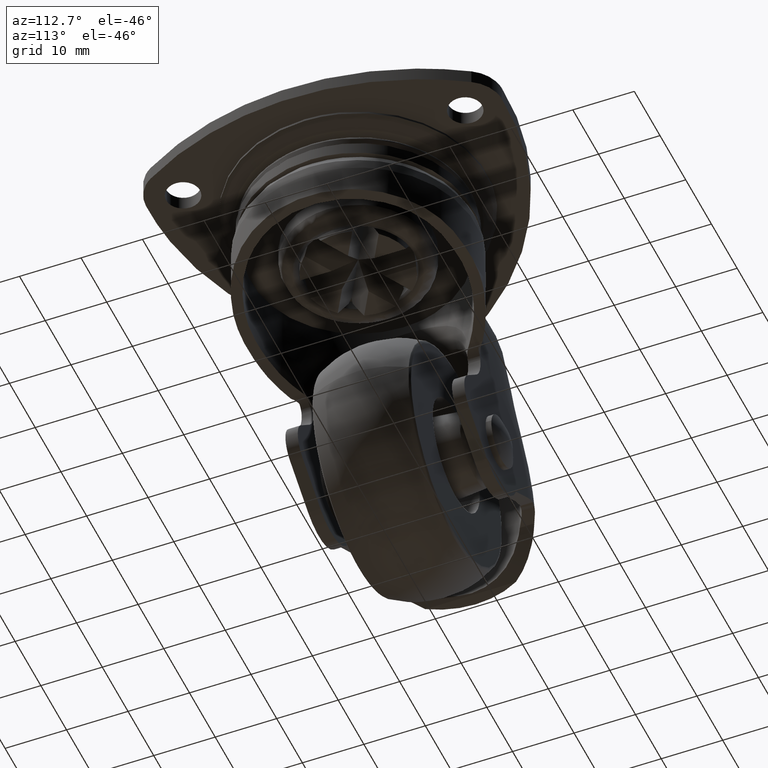
[diagram: clean part render]
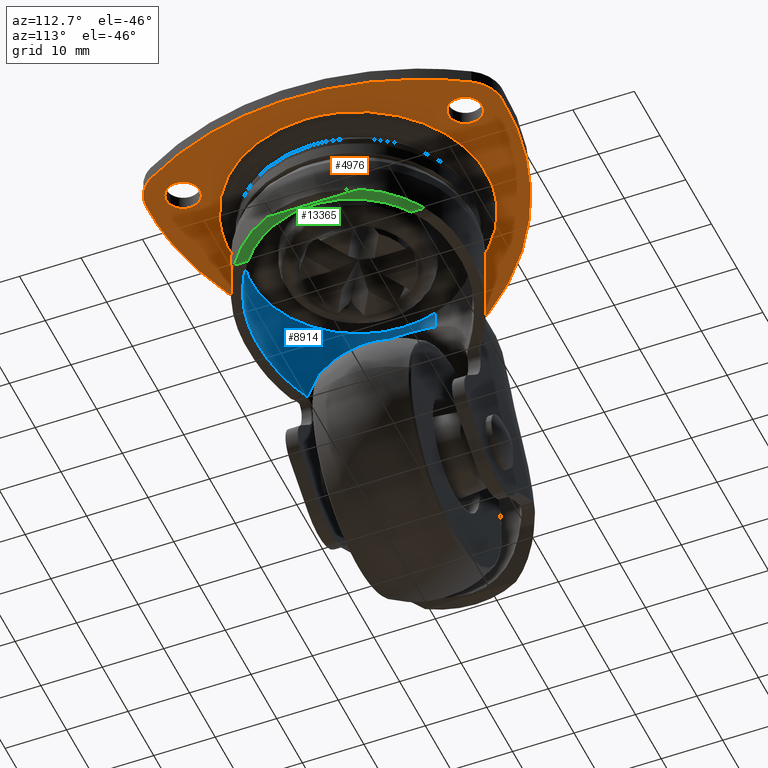
[diagram: same view with three faces highlighted in distinct colors, each labeled with its STEP entity id]
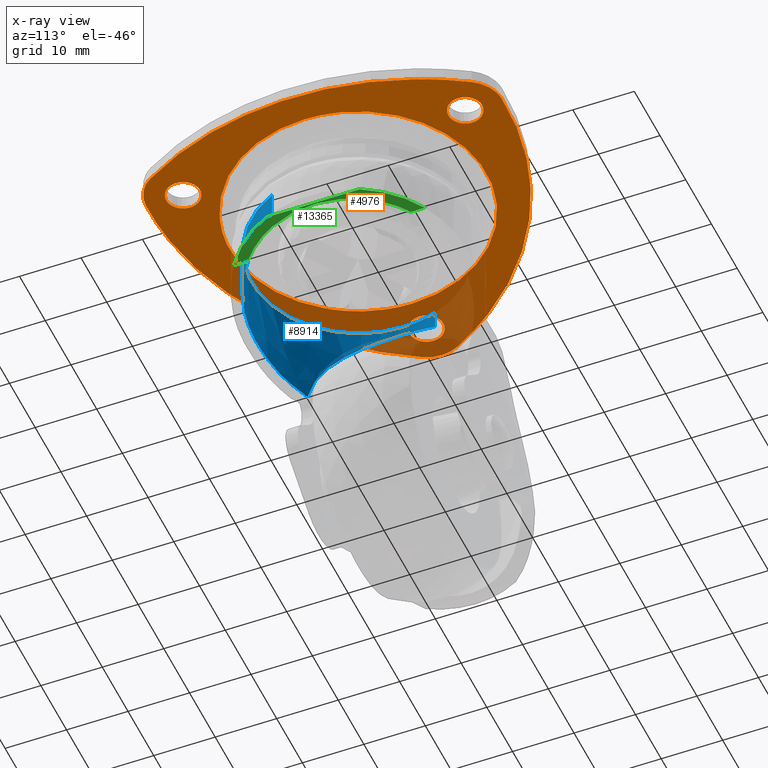
[diagram: x-ray of the same camera — body ghosted, the three highlighted faces saturated]
A machine part, auxiliary view with three faces highlighted in distinct colors.
The next image is the same camera in x-ray (body ghosted, the three faces saturated) — at least one of them is partly hidden behind the body in this view.
Their STEP definitions:

[orange] entity #4976 — the highlighted face is a freeform B-spline surface patch.
#2886=CARTESIAN_POINT('',(-19.528078374680700,-7.334795163753796,-2.299999773513321));
#2887=VERTEX_POINT('',#2886);
#2893=CARTESIAN_POINT('',(-20.860130999999800,0.0,-2.300000000000095));
#2894=VERTEX_POINT('',#2893);
#2895=CARTESIAN_POINT('',(-19.528078374680703,-7.334795163753796,-2.299999773513321));
#2896=CARTESIAN_POINT('',(-20.860130999999804,-3.788352847634545,-2.300000000000095));
#2897=CARTESIAN_POINT('',(-20.860130999999800,0.0,-2.300000000000095));
#2905=(BOUNDED_CURVE()B_SPLINE_CURVE(2,(#2895,#2896,#2897),.UNSPECIFIED.,.F.,.U.)B_SPLINE_CURVE_WITH_KNOTS((3,3),(0.940284185797860,1.0),.UNSPECIFIED.)CURVE()GEOMETRIC_REPRESENTATION_ITEM()RATIONAL_B_SPLINE_CURVE((0.893499572868546,0.930038571857076,1.0))REPRESENTATION_ITEM(''));
#2906=EDGE_CURVE('',#2887,#2894,#2905,.T.);
#2908=CARTESIAN_POINT('',(20.860130999999800,0.0,-2.300000000000095));
#2909=VERTEX_POINT('',#2908);
#2910=CARTESIAN_POINT('',(-20.860130999999800,0.0,-2.300000000000095));
#2911=CARTESIAN_POINT('',(-20.860130999999807,20.860130999999807,-2.300000000000095));
#2912=CARTESIAN_POINT('',(0.0,20.860130999999800,-2.300000000000095));
#2913=CARTESIAN_POINT('',(20.860130999999807,20.860130999999807,-2.300000000000095));
#2914=CARTESIAN_POINT('',(20.860130999999800,0.0,-2.300000000000095));
#2922=(BOUNDED_CURVE()B_SPLINE_CURVE(2,(#2910,#2911,#2912,#2913,#2914),.UNSPECIFIED.,.F.,.U.)B_SPLINE_CURVE_WITH_KNOTS((3,2,3),(0.0,0.250000000000000,0.500000000000000),.UNSPECIFIED.)CURVE()GEOMETRIC_REPRESENTATION_ITEM()RATIONAL_B_SPLINE_CURVE((1.0,0.707106781186548,1.0,0.707106781186548,1.0))REPRESENTATION_ITEM(''));
#2923=EDGE_CURVE('',#2894,#2909,#2922,.T.);
#2925=CARTESIAN_POINT('',(1.273480532073540,-20.821222650737472,-2.300000000000483));
#2926=VERTEX_POINT('',#2925);
#2927=CARTESIAN_POINT('',(20.860130999999800,0.0,-2.300000000000095));
#2928=CARTESIAN_POINT('',(20.860130999999807,-19.623251788113841,-2.300000000000095));
#2929=CARTESIAN_POINT('',(1.273480532073540,-20.821222650737464,-2.300000000000483));
#2937=(BOUNDED_CURVE()B_SPLINE_CURVE(2,(#2927,#2928,#2929),.UNSPECIFIED.,.F.,.U.)B_SPLINE_CURVE_WITH_KNOTS((3,3),(0.500000000000000,0.739332962241674),.UNSPECIFIED.)CURVE()GEOMETRIC_REPRESENTATION_ITEM()RATIONAL_B_SPLINE_CURVE((1.0,0.719603993283511,0.976072041672571))REPRESENTATION_ITEM(''));
#2938=EDGE_CURVE('',#2909,#2926,#2937,.T.);
#3025=CARTESIAN_POINT('',(1.273480532073540,-20.821222650737464,-2.300000000000483));
#3026=CARTESIAN_POINT('',(0.637334644838357,-20.860130999999800,-2.300000000000095));
#3027=CARTESIAN_POINT('',(0.0,-20.860130999999800,-2.300000000000095));
#3028=CARTESIAN_POINT('',(-14.447928353834742,-20.860130999999797,-2.300000000000095));
#3029=CARTESIAN_POINT('',(-19.528078374680703,-7.334795163753796,-2.299999773513321));
#3037=(BOUNDED_CURVE()B_SPLINE_CURVE(2,(#3025,#3026,#3027,#3028,#3029),.UNSPECIFIED.,.F.,.U.)B_SPLINE_CURVE_WITH_KNOTS((3,2,3),(0.739332962241674,0.750000000000000,0.940284185797860),.UNSPECIFIED.)CURVE()GEOMETRIC_REPRESENTATION_ITEM()RATIONAL_B_SPLINE_CURVE((0.976072041672571,0.987502787903037,1.0,0.777068209329471,0.893499572868546))REPRESENTATION_ITEM(''));
#3038=EDGE_CURVE('',#2926,#2887,#3037,.T.);
#3100=CARTESIAN_POINT('',(-26.332116516199349,2.744870695655254,-2.300000000000080));
#3101=VERTEX_POINT('',#3100);
#3107=CARTESIAN_POINT('',(-23.750000000000000,0.0,-2.300000000000080));
#3108=VERTEX_POINT('',#3107);
#3109=CARTESIAN_POINT('',(-23.750000000000000,0.0,-2.300000000000080));
#3110=CARTESIAN_POINT('',(-23.750000000000004,2.586941683839990,-2.300000000000079));
#3111=CARTESIAN_POINT('',(-26.332116516199349,2.744870695655254,-2.300000000000080));
#3119=(BOUNDED_CURVE()B_SPLINE_CURVE(2,(#3109,#3110,#3111),.UNSPECIFIED.,.F.,.U.)B_SPLINE_CURVE_WITH_KNOTS((3,3),(0.500000000000000,0.739332962231937),.UNSPECIFIED.)CURVE()GEOMETRIC_REPRESENTATION_ITEM()RATIONAL_B_SPLINE_CURVE((1.0,0.719603993294918,0.976072041651703))REPRESENTATION_ITEM(''));
#3120=EDGE_CURVE('',#3108,#3101,#3119,.T.);
#3122=CARTESIAN_POINT('',(-26.824594145320749,-2.730776197498341,-2.300000000000080));
#3123=VERTEX_POINT('',#3122);
#3124=CARTESIAN_POINT('',(-26.824594145320745,-2.730776197498340,-2.300000000000080));
#3125=CARTESIAN_POINT('',(-26.662866329057568,-2.750000000000000,-2.300000000000080));
#3126=CARTESIAN_POINT('',(-26.500000000000000,-2.750000000000000,-2.300000000000080));
#3127=CARTESIAN_POINT('',(-23.750000000000011,-2.750000000000000,-2.300000000000080));
#3128=CARTESIAN_POINT('',(-23.750000000000000,0.0,-2.300000000000080));
#3136=(BOUNDED_CURVE()B_SPLINE_CURVE(2,(#3124,#3125,#3126,#3127,#3128),.UNSPECIFIED.,.F.,.U.)B_SPLINE_CURVE_WITH_KNOTS((3,2,3),(0.229562473513830,0.250000000000000,0.500000000000000),.UNSPECIFIED.)CURVE()GEOMETRIC_REPRESENTATION_ITEM()RATIONAL_B_SPLINE_CURVE((0.956026754184330,0.976055948331522,1.0,0.707106781186548,1.0))REPRESENTATION_ITEM(''));
#3137=EDGE_CURVE('',#3123,#3108,#3136,.T.);
#3181=CARTESIAN_POINT('',(-29.250000000000000,0.0,-2.300000000000080));
#3182=VERTEX_POINT('',#3181);
#3183=CARTESIAN_POINT('',(-29.250000000000000,0.0,-2.300000000000080));
#3184=CARTESIAN_POINT('',(-29.249999999999993,-2.442479946339859,-2.300000000000080));
#3185=CARTESIAN_POINT('',(-26.824594145320745,-2.730776197498340,-2.300000000000080));
#3193=(BOUNDED_CURVE()B_SPLINE_CURVE(2,(#3183,#3184,#3185),.UNSPECIFIED.,.F.,.U.)B_SPLINE_CURVE_WITH_KNOTS((3,3),(0.0,0.229562473513830),.UNSPECIFIED.)CURVE()GEOMETRIC_REPRESENTATION_ITEM()RATIONAL_B_SPLINE_CURVE((1.0,0.731050832855025,0.956026754184330))REPRESENTATION_ITEM(''));
#3194=EDGE_CURVE('',#3182,#3123,#3193,.T.);
#3196=CARTESIAN_POINT('',(-26.332116516199349,2.744870695655254,-2.300000000000079));
#3197=CARTESIAN_POINT('',(-26.415979900848871,2.750000000000000,-2.300000000000080));
#3198=CARTESIAN_POINT('',(-26.500000000000000,2.750000000000000,-2.300000000000080));
#3199=CARTESIAN_POINT('',(-29.250000000000004,2.750000000000000,-2.300000000000080));
#3200=CARTESIAN_POINT('',(-29.250000000000000,0.0,-2.300000000000080));
#3208=(BOUNDED_CURVE()B_SPLINE_CURVE(2,(#3196,#3197,#3198,#3199,#3200),.UNSPECIFIED.,.F.,.U.)B_SPLINE_CURVE_WITH_KNOTS((3,2,3),(0.739332962231937,0.750000000000000,1.0),.UNSPECIFIED.)CURVE()GEOMETRIC_REPRESENTATION_ITEM()RATIONAL_B_SPLINE_CURVE((0.976072041651702,0.987502787891629,1.0,0.707106781186548,1.0))REPRESENTATION_ITEM(''));
#3209=EDGE_CURVE('',#3101,#3182,#3208,.T.);
#3286=CARTESIAN_POINT('',(13.417883483800651,25.694544695655249,-2.300000000000080));
#3287=VERTEX_POINT('',#3286);
#3293=CARTESIAN_POINT('',(16.0,22.949674000000002,-2.300000000000080));
#3294=VERTEX_POINT('',#3293);
#3295=CARTESIAN_POINT('',(16.0,22.949674000000002,-2.300000000000080));
#3296=CARTESIAN_POINT('',(15.999999999999995,25.536615683839983,-2.300000000000079));
#3297=CARTESIAN_POINT('',(13.417883483800647,25.694544695655253,-2.300000000000080));
#3305=(BOUNDED_CURVE()B_SPLINE_CURVE(2,(#3295,#3296,#3297),.UNSPECIFIED.,.F.,.U.)B_SPLINE_CURVE_WITH_KNOTS((3,3),(0.500000000000000,0.739332962231937),.UNSPECIFIED.)CURVE()GEOMETRIC_REPRESENTATION_ITEM()RATIONAL_B_SPLINE_CURVE((1.0,0.719603993294918,0.976072041651703))REPRESENTATION_ITEM(''));
#3306=EDGE_CURVE('',#3294,#3287,#3305,.T.);
#3308=CARTESIAN_POINT('',(12.925405854679260,20.218897802501662,-2.300000000000080));
#3309=VERTEX_POINT('',#3308);
#3310=CARTESIAN_POINT('',(12.925405854679255,20.218897802501662,-2.300000000000081));
#3311=CARTESIAN_POINT('',(13.087133670942436,20.199674000000002,-2.300000000000080));
#3312=CARTESIAN_POINT('',(13.250000000000000,20.199674000000002,-2.300000000000080));
#3313=CARTESIAN_POINT('',(15.999999999999998,20.199674000000009,-2.300000000000080));
#3314=CARTESIAN_POINT('',(16.0,22.949674000000002,-2.300000000000080));
#3322=(BOUNDED_CURVE()B_SPLINE_CURVE(2,(#3310,#3311,#3312,#3313,#3314),.UNSPECIFIED.,.F.,.U.)B_SPLINE_CURVE_WITH_KNOTS((3,2,3),(0.229562473513830,0.250000000000000,0.500000000000000),.UNSPECIFIED.)CURVE()GEOMETRIC_REPRESENTATION_ITEM()RATIONAL_B_SPLINE_CURVE((0.956026754184330,0.976055948331522,1.0,0.707106781186548,1.0))REPRESENTATION_ITEM(''));
#3323=EDGE_CURVE('',#3309,#3294,#3322,.T.);
#3367=CARTESIAN_POINT('',(10.500000000000000,22.949674000000002,-2.300000000000080));
#3368=VERTEX_POINT('',#3367);
#3369=CARTESIAN_POINT('',(10.500000000000000,22.949674000000002,-2.300000000000080));
#3370=CARTESIAN_POINT('',(10.499999999999998,20.507194053660132,-2.300000000000079));
#3371=CARTESIAN_POINT('',(12.925405854679262,20.218897802501658,-2.300000000000080));
#3379=(BOUNDED_CURVE()B_SPLINE_CURVE(2,(#3369,#3370,#3371),.UNSPECIFIED.,.F.,.U.)B_SPLINE_CURVE_WITH_KNOTS((3,3),(0.0,0.229562473513830),.UNSPECIFIED.)CURVE()GEOMETRIC_REPRESENTATION_ITEM()RATIONAL_B_SPLINE_CURVE((1.0,0.731050832855026,0.956026754184330))REPRESENTATION_ITEM(''));
#3380=EDGE_CURVE('',#3368,#3309,#3379,.T.);
#3382=CARTESIAN_POINT('',(13.417883483800649,25.694544695655253,-2.300000000000081));
#3383=CARTESIAN_POINT('',(13.334020099151134,25.699673999999998,-2.300000000000080));
#3384=CARTESIAN_POINT('',(13.250000000000000,25.699674000000002,-2.300000000000080));
#3385=CARTESIAN_POINT('',(10.499999999999998,25.699673999999991,-2.300000000000080));
#3386=CARTESIAN_POINT('',(10.500000000000000,22.949674000000002,-2.300000000000080));
#3394=(BOUNDED_CURVE()B_SPLINE_CURVE(2,(#3382,#3383,#3384,#3385,#3386),.UNSPECIFIED.,.F.,.U.)B_SPLINE_CURVE_WITH_KNOTS((3,2,3),(0.739332962231937,0.750000000000000,1.0),.UNSPECIFIED.)CURVE()GEOMETRIC_REPRESENTATION_ITEM()RATIONAL_B_SPLINE_CURVE((0.976072041651702,0.987502787891629,1.0,0.707106781186548,1.0))REPRESENTATION_ITEM(''));
#3395=EDGE_CURVE('',#3287,#3368,#3394,.T.);
#3472=CARTESIAN_POINT('',(13.417883483800651,-20.204802304344849,-2.300000000000080));
#3473=VERTEX_POINT('',#3472);
#3479=CARTESIAN_POINT('',(16.0,-22.949673000000100,-2.300000000000080));
#3480=VERTEX_POINT('',#3479);
#3481=CARTESIAN_POINT('',(16.0,-22.949673000000100,-2.300000000000080));
#3482=CARTESIAN_POINT('',(15.999999999999995,-20.362731316160108,-2.300000000000079));
#3483=CARTESIAN_POINT('',(13.417883483800647,-20.204802304344849,-2.300000000000080));
#3491=(BOUNDED_CURVE()B_SPLINE_CURVE(2,(#3481,#3482,#3483),.UNSPECIFIED.,.F.,.U.)B_SPLINE_CURVE_WITH_KNOTS((3,3),(0.500000000000000,0.739332962231937),.UNSPECIFIED.)CURVE()GEOMETRIC_REPRESENTATION_ITEM()RATIONAL_B_SPLINE_CURVE((1.0,0.719603993294918,0.976072041651703))REPRESENTATION_ITEM(''));
#3492=EDGE_CURVE('',#3480,#3473,#3491,.T.);
#3494=CARTESIAN_POINT('',(12.925405854679260,-25.680449197498440,-2.300000000000080));
#3495=VERTEX_POINT('',#3494);
#3496=CARTESIAN_POINT('',(12.925405854679255,-25.680449197498440,-2.300000000000081));
#3497=CARTESIAN_POINT('',(13.087133670942436,-25.699673000000097,-2.300000000000080));
#3498=CARTESIAN_POINT('',(13.250000000000000,-25.699673000000100,-2.300000000000080));
#3499=CARTESIAN_POINT('',(15.999999999999998,-25.699673000000107,-2.300000000000080));
#3500=CARTESIAN_POINT('',(16.0,-22.949673000000100,-2.300000000000080));
#3508=(BOUNDED_CURVE()B_SPLINE_CURVE(2,(#3496,#3497,#3498,#3499,#3500),.UNSPECIFIED.,.F.,.U.)B_SPLINE_CURVE_WITH_KNOTS((3,2,3),(0.229562473513830,0.250000000000000,0.500000000000000),.UNSPECIFIED.)CURVE()GEOMETRIC_REPRESENTATION_ITEM()RATIONAL_B_SPLINE_CURVE((0.956026754184330,0.976055948331522,1.0,0.707106781186548,1.0))REPRESENTATION_ITEM(''));
#3509=EDGE_CURVE('',#3495,#3480,#3508,.T.);
#3553=CARTESIAN_POINT('',(10.500000000000000,-22.949673000000100,-2.300000000000080));
#3554=VERTEX_POINT('',#3553);
#3555=CARTESIAN_POINT('',(10.500000000000000,-22.949673000000100,-2.300000000000080));
#3556=CARTESIAN_POINT('',(10.499999999999998,-25.392152946339959,-2.300000000000079));
#3557=CARTESIAN_POINT('',(12.925405854679262,-25.680449197498437,-2.300000000000080));
#3565=(BOUNDED_CURVE()B_SPLINE_CURVE(2,(#3555,#3556,#3557),.UNSPECIFIED.,.F.,.U.)B_SPLINE_CURVE_WITH_KNOTS((3,3),(0.0,0.229562473513830),.UNSPECIFIED.)CURVE()GEOMETRIC_REPRESENTATION_ITEM()RATIONAL_B_SPLINE_CURVE((1.0,0.731050832855026,0.956026754184330))REPRESENTATION_ITEM(''));
#3566=EDGE_CURVE('',#3554,#3495,#3565,.T.);
#3568=CARTESIAN_POINT('',(13.417883483800649,-20.204802304344849,-2.300000000000081));
#3569=CARTESIAN_POINT('',(13.334020099151134,-20.199673000000107,-2.300000000000080));
#3570=CARTESIAN_POINT('',(13.250000000000000,-20.199673000000100,-2.300000000000080));
#3571=CARTESIAN_POINT('',(10.499999999999998,-20.199673000000111,-2.300000000000080));
#3572=CARTESIAN_POINT('',(10.500000000000000,-22.949673000000100,-2.300000000000080));
#3580=(BOUNDED_CURVE()B_SPLINE_CURVE(2,(#3568,#3569,#3570,#3571,#3572),.UNSPECIFIED.,.F.,.U.)B_SPLINE_CURVE_WITH_KNOTS((3,2,3),(0.739332962231937,0.750000000000000,1.0),.UNSPECIFIED.)CURVE()GEOMETRIC_REPRESENTATION_ITEM()RATIONAL_B_SPLINE_CURVE((0.976072041651702,0.987502787891629,1.0,0.707106781186548,1.0))REPRESENTATION_ITEM(''));
#3581=EDGE_CURVE('',#3473,#3554,#3580,.T.);
#4855=CARTESIAN_POINT('',(-35.407548841360899,31.853379514801791,-2.300000000000095));
#4856=CARTESIAN_POINT('',(28.616739386169861,31.853379514801791,-2.300000000000095));
#4857=CARTESIAN_POINT('',(-35.407548841360899,-31.853376444295250,-2.300000000000095));
#4858=CARTESIAN_POINT('',(28.616739386169861,-31.853376444295250,-2.300000000000095));
#4859=B_SPLINE_SURFACE_WITH_KNOTS('',1,1,((#4855,#4857),(#4856,#4858)),.UNSPECIFIED.,.F.,.F.,.U.,(2,2),(2,2),(0.0,64.024288227530761),(0.0,63.706755959097052),.UNSPECIFIED.);
#4860=CARTESIAN_POINT('',(18.369201818529849,26.079173804453351,-2.300000000000080));
#4861=VERTEX_POINT('',#4860);
#4862=CARTESIAN_POINT('',(13.400626615101521,28.947782728843048,-2.300000000000080));
#4863=VERTEX_POINT('',#4862);
#4864=CARTESIAN_POINT('',(18.369201818529849,26.079173804453351,-2.300000000000080));
#4865=CARTESIAN_POINT('',(16.665671970180849,28.865790037092776,-2.300000000000080));
#4866=CARTESIAN_POINT('',(13.400626615101521,28.947782728843048,-2.300000000000080));
#4874=(BOUNDED_CURVE()B_SPLINE_CURVE(2,(#4864,#4865,#4866),.UNSPECIFIED.,.F.,.U.)CURVE()GEOMETRIC_REPRESENTATION_ITEM()QUASI_UNIFORM_CURVE()RATIONAL_B_SPLINE_CURVE((1.0,0.878304632990336,1.0))REPRESENTATION_ITEM(''));
#4875=EDGE_CURVE('',#4861,#4863,#4874,.T.);
#4876=ORIENTED_EDGE('',*,*,#4875,.F.);
#4877=CARTESIAN_POINT('',(18.369201538223550,-26.079173856534499,-2.300000000000080));
#4878=VERTEX_POINT('',#4877);
#4879=CARTESIAN_POINT('',(18.369201538223550,-26.079173856534499,-2.300000000000080));
#4880=CARTESIAN_POINT('',(34.312078163401253,-0.000000111719852,-2.300000000000080));
#4881=CARTESIAN_POINT('',(18.369201818529859,26.079173804453340,-2.300000000000080));
#4889=(BOUNDED_CURVE()B_SPLINE_CURVE(2,(#4879,#4880,#4881),.UNSPECIFIED.,.F.,.U.)CURVE()GEOMETRIC_REPRESENTATION_ITEM()QUASI_UNIFORM_CURVE()RATIONAL_B_SPLINE_CURVE((1.0,0.853200255376253,1.0))REPRESENTATION_ITEM(''));
#4890=EDGE_CURVE('',#4878,#4861,#4889,.T.);
#4891=ORIENTED_EDGE('',*,*,#4890,.F.);
#4892=CARTESIAN_POINT('',(13.400626615101540,-28.947781728843250,-2.300000000000080));
#4893=VERTEX_POINT('',#4892);
#4894=CARTESIAN_POINT('',(13.400626615101540,-28.947781728843250,-2.300000000000080));
#4895=CARTESIAN_POINT('',(16.665671293823422,-28.865789054077798,-2.300000000000080));
#4896=CARTESIAN_POINT('',(18.369201538223560,-26.079173856534499,-2.300000000000080));
#4904=(BOUNDED_CURVE()B_SPLINE_CURVE(2,(#4894,#4895,#4896),.UNSPECIFIED.,.F.,.U.)CURVE()GEOMETRIC_REPRESENTATION_ITEM()QUASI_UNIFORM_CURVE()RATIONAL_B_SPLINE_CURVE((1.0,0.878304674578743,1.0))REPRESENTATION_ITEM(''));
#4905=EDGE_CURVE('',#4893,#4878,#4904,.T.);
#4906=ORIENTED_EDGE('',*,*,#4905,.F.);
#4907=CARTESIAN_POINT('',(-31.769828012035550,-2.868608150926780,-2.300000000000080));
#4908=VERTEX_POINT('',#4907);
#4909=CARTESIAN_POINT('',(-31.769828012035550,-2.868608150926780,-2.300000000000080));
#4910=CARTESIAN_POINT('',(-17.156038600813027,-29.715130692859464,-2.300000000000080));
#4911=CARTESIAN_POINT('',(13.400626615101521,-28.947781728843150,-2.300000000000080));
#4919=(BOUNDED_CURVE()B_SPLINE_CURVE(2,(#4909,#4910,#4911),.UNSPECIFIED.,.F.,.U.)CURVE()GEOMETRIC_REPRESENTATION_ITEM()QUASI_UNIFORM_CURVE()RATIONAL_B_SPLINE_CURVE((1.0,0.853200255966014,1.0))REPRESENTATION_ITEM(''));
#4920=EDGE_CURVE('',#4908,#4893,#4919,.T.);
#4921=ORIENTED_EDGE('',*,*,#4920,.F.);
#4922=CARTESIAN_POINT('',(-31.769827433630951,2.868608924389780,-2.300000000000080));
#4923=VERTEX_POINT('',#4922);
#4924=CARTESIAN_POINT('',(-31.769827433630951,2.868608924389780,-2.300000000000080));
#4925=CARTESIAN_POINT('',(-33.331342783626887,0.000000544157564,-2.300000000000079));
#4926=CARTESIAN_POINT('',(-31.769828012035550,-2.868608150926780,-2.300000000000080));
#4934=(BOUNDED_CURVE()B_SPLINE_CURVE(2,(#4924,#4925,#4926),.UNSPECIFIED.,.F.,.U.)CURVE()GEOMETRIC_REPRESENTATION_ITEM()QUASI_UNIFORM_CURVE()RATIONAL_B_SPLINE_CURVE((1.0,0.878304630588961,1.0))REPRESENTATION_ITEM(''));
#4935=EDGE_CURVE('',#4923,#4908,#4934,.T.);
#4936=ORIENTED_EDGE('',*,*,#4935,.F.);
#4937=CARTESIAN_POINT('',(13.400626615101530,28.947782728843048,-2.300000000000080));
#4938=CARTESIAN_POINT('',(-17.156038547551749,29.715131691521837,-2.300000000000079));
#4939=CARTESIAN_POINT('',(-31.769827433630951,2.868608924389775,-2.300000000000080));
#4947=(BOUNDED_CURVE()B_SPLINE_CURVE(2,(#4937,#4938,#4939),.UNSPECIFIED.,.F.,.U.)CURVE()GEOMETRIC_REPRESENTATION_ITEM()QUASI_UNIFORM_CURVE()RATIONAL_B_SPLINE_CURVE((1.0,0.853200256370594,1.0))REPRESENTATION_ITEM(''));
#4948=EDGE_CURVE('',#4863,#4923,#4947,.T.);
#4949=ORIENTED_EDGE('',*,*,#4948,.F.);
#4950=EDGE_LOOP('',(#4876,#4891,#4906,#4921,#4936,#4949));
#4951=FACE_OUTER_BOUND('',#4950,.T.);
#4952=ORIENTED_EDGE('',*,*,#2923,.F.);
#4953=ORIENTED_EDGE('',*,*,#2906,.F.);
#4954=ORIENTED_EDGE('',*,*,#3038,.F.);
#4955=ORIENTED_EDGE('',*,*,#2938,.F.);
#4956=EDGE_LOOP('',(#4952,#4953,#4954,#4955));
#4957=FACE_BOUND('',#4956,.T.);
#4958=ORIENTED_EDGE('',*,*,#3492,.T.);
#4959=ORIENTED_EDGE('',*,*,#3581,.T.);
#4960=ORIENTED_EDGE('',*,*,#3566,.T.);
#4961=ORIENTED_EDGE('',*,*,#3509,.T.);
#4962=EDGE_LOOP('',(#4958,#4959,#4960,#4961));
#4963=FACE_BOUND('',#4962,.T.);
#4964=ORIENTED_EDGE('',*,*,#3306,.T.);
#4965=ORIENTED_EDGE('',*,*,#3395,.T.);
#4966=ORIENTED_EDGE('',*,*,#3380,.T.);
#4967=ORIENTED_EDGE('',*,*,#3323,.T.);
#4968=EDGE_LOOP('',(#4964,#4965,#4966,#4967));
#4969=FACE_BOUND('',#4968,.T.);
#4970=ORIENTED_EDGE('',*,*,#3120,.T.);
#4971=ORIENTED_EDGE('',*,*,#3209,.T.);
#4972=ORIENTED_EDGE('',*,*,#3194,.T.);
#4973=ORIENTED_EDGE('',*,*,#3137,.T.);
#4974=EDGE_LOOP('',(#4970,#4971,#4972,#4973));
#4975=FACE_BOUND('',#4974,.T.);
#4976=ADVANCED_FACE('',(#4951,#4957,#4963,#4969,#4975),#4859,.T.);

[blue] entity #8914 — the highlighted face is a freeform B-spline surface patch.
#8462=CARTESIAN_POINT('',(-16.438563581971302,5.618435099719518,-13.756746465194340));
#8463=VERTEX_POINT('',#8462);
#8590=CARTESIAN_POINT('',(15.679886700552959,-7.478918026366475,-17.624665072809151));
#8591=VERTEX_POINT('',#8590);
#8633=CARTESIAN_POINT('',(15.679890345803759,-7.478911289378994,-10.756337999999980));
#8634=VERTEX_POINT('',#8633);
#8635=CARTESIAN_POINT('',(15.679890345803759,-7.478911289378994,-10.756337999999980));
#8636=CARTESIAN_POINT('',(15.679886700552959,-7.478918026366475,-17.624665072809151));
#8637=QUASI_UNIFORM_CURVE('',1,(#8635,#8636),.UNSPECIFIED.,.F.,.U.);
#8638=EDGE_CURVE('',#8634,#8591,#8637,.T.);
#8655=CARTESIAN_POINT('',(-16.438562554967341,5.618428290665593,-10.756337999999980));
#8656=VERTEX_POINT('',#8655);
#8672=CARTESIAN_POINT('',(-16.438562554967341,5.618428290665593,-10.756337999999980));
#8673=CARTESIAN_POINT('',(-16.438563581971302,5.618435099719518,-13.756746465194340));
#8674=QUASI_UNIFORM_CURVE('',1,(#8672,#8673),.UNSPECIFIED.,.F.,.U.);
#8675=EDGE_CURVE('',#8656,#8463,#8674,.T.);
#8680=CARTESIAN_POINT('',(15.679885387246580,-7.478921685228040,-10.370579294695430));
#8681=CARTESIAN_POINT('',(8.200963702018541,-23.158807072474630,-10.370579294695430));
#8682=CARTESIAN_POINT('',(-7.478921685228040,-15.679885387246580,-10.370579294695430));
#8683=CARTESIAN_POINT('',(-21.441729492488797,-9.019967695416353,-10.370579294695430));
#8684=CARTESIAN_POINT('',(-16.438560578550561,5.618434073323876,-10.370579294695430));
#8685=CARTESIAN_POINT('',(15.679885387246580,-7.478921685228040,-26.582088885119060));
#8686=CARTESIAN_POINT('',(8.200963702018541,-23.158807072474630,-26.582088885119056));
#8687=CARTESIAN_POINT('',(-7.478921685228040,-15.679885387246580,-26.582088885119060));
#8688=CARTESIAN_POINT('',(-21.441729492488797,-9.019967695416353,-26.582088885119063));
#8689=CARTESIAN_POINT('',(-16.438560578550561,5.618434073323876,-26.582088885119060));
#8697=(BOUNDED_SURFACE()B_SPLINE_SURFACE(2,1,((#8680,#8685),(#8681,#8686),(#8682,#8687),(#8683,#8688),(#8684,#8689)),.UNSPECIFIED.,.F.,.F.,.U.)B_SPLINE_SURFACE_WITH_KNOTS((3,2,3),(2,2),(0.0,28.783191113209941,55.263726937363082),(0.0,16.211509590423638),.UNSPECIFIED.)GEOMETRIC_REPRESENTATION_ITEM()RATIONAL_B_SPLINE_SURFACE(((1.0,1.0),(0.707106781186548,0.707106781186548),(1.0,1.0),(0.730538238691624,0.730538238691624),(0.956886118190660,0.956886118190660)))REPRESENTATION_ITEM('')SURFACE());
#8698=CARTESIAN_POINT('',(-11.462223214484739,-13.054137823398760,-26.186686212181900));
#8699=VERTEX_POINT('',#8698);
#8700=CARTESIAN_POINT('',(-11.462223214484739,-13.054137823398760,-26.186686212181900));
#8701=CARTESIAN_POINT('',(-11.529242868406390,-12.995291002368591,-25.737962508717139));
#8702=CARTESIAN_POINT('',(-11.609231764429760,-12.924171375894590,-25.293603520474289));
#8703=CARTESIAN_POINT('',(-11.746792368308000,-12.798819894264881,-24.633313339671449));
#8704=CARTESIAN_POINT('',(-11.795538716116489,-12.753950693627070,-24.414476881740640));
#8705=CARTESIAN_POINT('',(-11.898134297940810,-12.658293384951000,-23.980650415326259));
#8706=CARTESIAN_POINT('',(-11.952026161978260,-12.607466573950690,-23.765452300651120));
#8707=CARTESIAN_POINT('',(-12.120940140374049,-12.445889473300831,-23.124869857879791));
#8708=CARTESIAN_POINT('',(-12.243192443898209,-12.326066317192749,-22.704487578170681));
#8709=CARTESIAN_POINT('',(-12.504323531515050,-12.061076372899510,-21.876611832389781));
#8710=CARTESIAN_POINT('',(-12.643206081326291,-11.915910888415960,-21.469119105978379));
#8711=CARTESIAN_POINT('',(-12.862174831125150,-11.677720467225390,-20.867436541004398));
#8712=CARTESIAN_POINT('',(-12.936939926724181,-11.594910443065681,-20.668470766075561));
#8713=CARTESIAN_POINT('',(-13.089727849589760,-11.422144566407400,-20.273739177815830));
#8714=CARTESIAN_POINT('',(-13.167508374016171,-11.332458089620181,-20.078608503208859));
#8715=CARTESIAN_POINT('',(-13.403797959919830,-11.053983075937531,-19.501475517798831));
#8716=CARTESIAN_POINT('',(-13.565521074523620,-10.855494959354351,-19.127017252982458));
#8717=CARTESIAN_POINT('',(-13.894477845030670,-10.431136817755940,-18.398452836553702));
#8718=CARTESIAN_POINT('',(-14.061716520881070,-10.205271854985680,-18.044345748345091));
#8719=CARTESIAN_POINT('',(-14.398897196267329,-9.723744201806753,-17.356738036199811));
#8720=CARTESIAN_POINT('',(-14.568845081503721,-9.468091607883549,-17.023233613157899));
#8721=CARTESIAN_POINT('',(-14.823618579872351,-9.059752660308954,-16.539043934553160));
#8722=CARTESIAN_POINT('',(-14.908517097137761,-8.919488138528347,-16.380329931303180));
#8723=CARTESIAN_POINT('',(-15.077873156199070,-8.630115278349960,-16.068435973739181));
#8724=CARTESIAN_POINT('',(-15.161922318833509,-8.481691895017026,-15.916011196208210));
#8725=CARTESIAN_POINT('',(-15.410836224721780,-8.026140896856228,-15.470711731845130));
#8726=CARTESIAN_POINT('',(-15.572790149853020,-7.708226204155214,-15.189203016698681));
#8727=CARTESIAN_POINT('',(-15.885335924781840,-7.041636321362147,-14.657828677587800));
#8728=CARTESIAN_POINT('',(-16.035938731685039,-6.692975415528137,-14.407951672493770));
#8729=CARTESIAN_POINT('',(-16.214727683304829,-6.235805645173444,-14.116639561173271));
#8730=CARTESIAN_POINT('',(-16.250010732683521,-6.143301195879148,-14.059432085866799));
#8731=CARTESIAN_POINT('',(-16.319560934362730,-5.956083276177948,-13.947172934361300));
#8732=CARTESIAN_POINT('',(-16.353832763869310,-5.861350000792931,-13.892114360278191));
#8733=CARTESIAN_POINT('',(-16.454617812709088,-5.574904197777166,-13.730890059640551));
#8734=CARTESIAN_POINT('',(-16.519241916708800,-5.380578143886179,-13.628445598606390));
#8735=CARTESIAN_POINT('',(-16.642903849209450,-4.984949689193016,-13.433845188603390));
#8736=CARTESIAN_POINT('',(-16.701971339498229,-4.783540348544103,-13.341643407503209));
#8737=CARTESIAN_POINT('',(-16.813901733525139,-4.373878211072979,-13.168034238234069));
#8738=CARTESIAN_POINT('',(-16.919216708582859,-3.958898475982338,-13.005853561870341));
#8739=CARTESIAN_POINT('',(-17.010556880834081,-3.533025900459922,-12.866806643479210));
#8740=CARTESIAN_POINT('',(-17.073512006505759,-3.209403602656487,-12.771388426669979));
#8741=CARTESIAN_POINT('',(-17.093571700711450,-3.100826128262325,-12.741061133584351));
#8742=CARTESIAN_POINT('',(-17.131784036303198,-2.882237063910917,-12.683408324577609));
#8743=CARTESIAN_POINT('',(-17.149941175370060,-2.772171845438788,-12.656076224190020));
#8744=CARTESIAN_POINT('',(-17.235312639109601,-2.221630922636045,-12.527797204540031));
#8745=CARTESIAN_POINT('',(-17.286792718026319,-1.777874801725244,-12.451177924562851));
#8746=CARTESIAN_POINT('',(-17.355489584740720,-0.883751809870909,-12.349122387115960));
#8747=CARTESIAN_POINT('',(-17.372710498911239,-0.433385509112264,-12.323682498894920));
#8748=CARTESIAN_POINT('',(-17.371911895558270,0.247262807970309,-12.324864401803829));
#8749=CARTESIAN_POINT('',(-17.367202153132940,0.474997186010921,-12.331831957710550));
#8750=CARTESIAN_POINT('',(-17.353302011683891,0.817911565142100,-12.352426670284830));
#8751=CARTESIAN_POINT('',(-17.347525159659121,0.932374061379429,-12.360989057060671));
#8752=CARTESIAN_POINT('',(-17.333811103900921,1.159716362510927,-12.381333553423289));
#8753=CARTESIAN_POINT('',(-17.325864961114011,1.272849269341193,-12.393128910716440));
#8754=CARTESIAN_POINT('',(-17.280819180449690,1.835877304710902,-12.460069310742140));
#8755=CARTESIAN_POINT('',(-17.227807098991999,2.277888079743335,-12.539017395825359));
#8756=CARTESIAN_POINT('',(-17.090595136337551,3.146055605159412,-12.745312241962340));
#8757=CARTESIAN_POINT('',(-17.006385154988308,3.572207920591037,-12.872671632368570));
#8758=CARTESIAN_POINT('',(-16.882935690769131,4.095241603713753,-13.061885774620791));
#8759=CARTESIAN_POINT('',(-16.857335243538270,4.199364303674790,-13.101233780394590));
#8760=CARTESIAN_POINT('',(-16.804341859462280,4.406643404525686,-13.182951342943120));
#8761=CARTESIAN_POINT('',(-16.776970264821731,4.509700513917641,-13.225288646472251));
#8762=CARTESIAN_POINT('',(-16.692833098928460,4.815281774001521,-13.355883873869910));
#8763=CARTESIAN_POINT('',(-16.633867406871069,5.014932944221296,-13.447997974372960));
#8764=CARTESIAN_POINT('',(-16.528979855550929,5.348518503976549,-13.613174545655120));
#8765=CARTESIAN_POINT('',(-16.484373376735920,5.484397774860550,-13.683787506150111));
#8766=CARTESIAN_POINT('',(-16.438563581971302,5.618435099719518,-13.756746465194340));
#8767=B_SPLINE_CURVE_WITH_KNOTS('',3,(#8700,#8701,#8702,#8703,#8704,#8705,#8706,#8707,#8708,#8709,#8710,#8711,#8712,#8713,#8714,#8715,#8716,#8717,#8718,#8719,#8720,#8721,#8722,#8723,#8724,#8725,#8726,#8727,#8728,#8729,#8730,#8731,#8732,#8733,#8734,#8735,#8736,#8737,#8738,#8739,#8740,#8741,#8742,#8743,#8744,#8745,#8746,#8747,#8748,#8749,#8750,#8751,#8752,#8753,#8754,#8755,#8756,#8757,#8758,#8759,#8760,#8761,#8762,#8763,#8764,#8765,#8766),.UNSPECIFIED.,.F.,.U.,(4,2,2,2,2,2,2,2,2,2,2,2,2,2,2,2,2,2,2,1,2,2,2,2,2,2,2,2,2,2,2,2,2,4),(0.0,0.031249999999999,0.046874999999999,0.062499999999998,0.093749999999998,0.124999999999997,0.140624999999997,0.156249999999997,0.187499999999997,0.218749999999996,0.249999999999996,0.265624999999996,0.281249999999996,0.312499999999995,0.343749999999995,0.351562499999995,0.359374999999995,0.374999999999996,0.390624999999996,0.406249999999996,0.421874999999996,0.429687499999997,0.437499999999997,0.468749999999997,0.499999999999998,0.515624999999998,0.523437499999998,0.531249999999998,0.562499999999998,0.593749999999999,0.601562499999999,0.609374999999999,0.624999999999999,0.635994431743277),.UNSPECIFIED.);
#8768=EDGE_CURVE('',#8699,#8463,#8767,.T.);
#8769=ORIENTED_EDGE('',*,*,#8768,.T.);
#8770=ORIENTED_EDGE('',*,*,#8675,.F.);
#8771=CARTESIAN_POINT('',(-17.372192588472050,0.0,-10.756337999999980));
#8772=VERTEX_POINT('',#8771);
#8773=CARTESIAN_POINT('',(-17.372192588472050,0.0,-10.756337999999980));
#8774=CARTESIAN_POINT('',(-17.372192588472057,2.886786109801061,-10.756337999999982));
#8775=CARTESIAN_POINT('',(-16.438562554967337,5.618428290665593,-10.756337999999982));
#8783=(BOUNDED_CURVE()B_SPLINE_CURVE(2,(#8773,#8774,#8775),.UNSPECIFIED.,.F.,.U.)B_SPLINE_CURVE_WITH_KNOTS((3,3),(0.500000000000000,0.554967492188971),.UNSPECIFIED.)CURVE()GEOMETRIC_REPRESENTATION_ITEM()RATIONAL_B_SPLINE_CURVE((1.0,0.935601577130676,0.899521712709764))REPRESENTATION_ITEM(''));
#8784=EDGE_CURVE('',#8772,#8656,#8783,.T.);
#8785=ORIENTED_EDGE('',*,*,#8784,.F.);
#8786=CARTESIAN_POINT('',(15.679890345803765,-7.478911289378994,-10.756337999999984));
#8787=CARTESIAN_POINT('',(10.961045279612071,-17.372192588472053,-10.756337999999980));
#8788=CARTESIAN_POINT('',(0.0,-17.372192588472050,-10.756337999999980));
#8789=CARTESIAN_POINT('',(-17.372192588472053,-17.372192588472053,-10.756337999999982));
#8790=CARTESIAN_POINT('',(-17.372192588472050,0.0,-10.756337999999980));
#8798=(BOUNDED_CURVE()B_SPLINE_CURVE(2,(#8786,#8787,#8788,#8789,#8790),.UNSPECIFIED.,.F.,.U.)B_SPLINE_CURVE_WITH_KNOTS((3,2,3),(0.073145176869554,0.250000000000000,0.500000000000000),.UNSPECIFIED.)CURVE()GEOMETRIC_REPRESENTATION_ITEM()RATIONAL_B_SPLINE_CURVE((0.878755541615329,0.792801686362559,1.0,0.707106781186548,1.0))REPRESENTATION_ITEM(''));
#8799=EDGE_CURVE('',#8634,#8772,#8798,.T.);
#8800=ORIENTED_EDGE('',*,*,#8799,.F.);
#8801=ORIENTED_EDGE('',*,*,#8638,.T.);
#8802=CARTESIAN_POINT('',(11.210520508588299,-13.270919533230700,-18.424408352251199));
#8803=VERTEX_POINT('',#8802);
#8804=CARTESIAN_POINT('',(11.210520508588299,-13.270919533230700,-18.424408352251199));
#8805=CARTESIAN_POINT('',(11.448846895982740,-13.069594909530540,-18.377617523436701));
#8806=CARTESIAN_POINT('',(11.682613177590291,-12.861129881748550,-18.332388772744210));
#8807=CARTESIAN_POINT('',(12.026223699871259,-12.537455010566569,-18.266810911720938));
#8808=CARTESIAN_POINT('',(12.139764805292440,-12.427552198739120,-18.245295960288939));
#8809=CARTESIAN_POINT('',(12.363367024560119,-12.205125931190620,-18.203214634085651));
#8810=CARTESIAN_POINT('',(12.473443345808260,-12.092600460820140,-18.182644716376011));
#8811=CARTESIAN_POINT('',(13.015284148124801,-11.523482350269550,-18.082066073221039));
#8812=CARTESIAN_POINT('',(13.421499587187760,-11.047473704102110,-18.008846668539999));
#8813=CARTESIAN_POINT('',(14.180337599063270,-10.054916806632530,-17.875173542525300));
#8814=CARTESIAN_POINT('',(14.532959982319641,-9.538368043224201,-17.814722756126379));
#8815=CARTESIAN_POINT('',(15.021008824871460,-8.732751460752937,-17.732740728106030));
#8816=CARTESIAN_POINT('',(15.176863404475640,-8.459069515470677,-17.706866343316559));
#8817=CARTESIAN_POINT('',(15.400179740312570,-8.040679724420563,-17.670158587392748));
#8818=CARTESIAN_POINT('',(15.472873265607429,-7.899904560096170,-17.658273546465590));
#8819=CARTESIAN_POINT('',(15.590000212517531,-7.665224955604562,-17.639217387106061));
#8820=CARTESIAN_POINT('',(15.635385899104390,-7.572213994470894,-17.631857969293570));
#8821=CARTESIAN_POINT('',(15.679886700552959,-7.478918026366475,-17.624665072809151));
#8822=B_SPLINE_CURVE_WITH_KNOTS('',3,(#8804,#8805,#8806,#8807,#8808,#8809,#8810,#8811,#8812,#8813,#8814,#8815,#8816,#8817,#8818,#8819,#8820,#8821),.UNSPECIFIED.,.F.,.U.,(4,2,2,2,2,2,2,2,4),(0.0,0.031250000000000,0.046875000000000,0.062500000000000,0.125000000000000,0.187499999999999,0.218749999999999,0.234374999999999,0.244554025565073),.UNSPECIFIED.);
#8823=EDGE_CURVE('',#8803,#8591,#8822,.T.);
#8824=ORIENTED_EDGE('',*,*,#8823,.F.);
#8825=CARTESIAN_POINT('',(3.662010262553715,-16.981836065865050,-20.641823778849300));
#8826=VERTEX_POINT('',#8825);
#8827=CARTESIAN_POINT('',(3.662010262553715,-16.981836065865050,-20.641823778849300));
#8828=CARTESIAN_POINT('',(3.889937204085352,-16.932685243631731,-20.551428814909858));
#8829=CARTESIAN_POINT('',(4.118473761750950,-16.878598968930159,-20.463056131735971));
#8830=CARTESIAN_POINT('',(4.576110325399271,-16.760314490150559,-20.290572196335368));
#8831=CARTESIAN_POINT('',(4.803653068911375,-16.696522255596250,-20.207045558625200));
#8832=CARTESIAN_POINT('',(5.482368121021960,-16.491215144441330,-19.964297331328670));
#8833=CARTESIAN_POINT('',(5.929633940203702,-16.335788204334190,-19.812902174902302));
#8834=CARTESIAN_POINT('',(7.254875679187955,-15.813339739409679,-19.387732054664390));
#8835=CARTESIAN_POINT('',(8.116437945783126,-15.390497471930070,-19.142924401267461));
#8836=CARTESIAN_POINT('',(9.161070859908239,-14.762359682945240,-18.878585218556321));
#8837=CARTESIAN_POINT('',(9.368370259243237,-14.631725450487931,-18.827804845889830));
#8838=CARTESIAN_POINT('',(9.676749144669303,-14.428054225964861,-18.754651256794752));
#8839=CARTESIAN_POINT('',(9.779246892920853,-14.358782484389890,-18.730739488289519));
#8840=CARTESIAN_POINT('',(9.982438197870948,-14.218271016840241,-18.684112793756881));
#8841=CARTESIAN_POINT('',(10.083180800580360,-14.147003626638030,-18.661385028496770));
#8842=CARTESIAN_POINT('',(10.536163495272900,-13.819270403780321,-18.560877367807471));
#8843=CARTESIAN_POINT('',(10.878644655173931,-13.551275627543180,-18.489564967612811));
#8844=CARTESIAN_POINT('',(11.210520508588299,-13.270919533230700,-18.424408352251199));
#8845=B_SPLINE_CURVE_WITH_KNOTS('',3,(#8827,#8828,#8829,#8830,#8831,#8832,#8833,#8834,#8835,#8836,#8837,#8838,#8839,#8840,#8841,#8842,#8843,#8844),.UNSPECIFIED.,.F.,.U.,(4,2,2,2,2,2,2,2,4),(0.0,0.015625000000000,0.031250000000000,0.062499999999999,0.124999999999999,0.140624999999999,0.148437499999999,0.156249999999999,0.183864964177190),.UNSPECIFIED.);
#8846=EDGE_CURVE('',#8826,#8803,#8845,.T.);
#8847=ORIENTED_EDGE('',*,*,#8846,.F.);
#8848=CARTESIAN_POINT('',(-1.330543638160180,-17.321164191760150,-21.891081822252950));
#8849=VERTEX_POINT('',#8848);
#8850=CARTESIAN_POINT('',(-1.330543638160180,-17.321164191760150,-21.891081822252950));
#8851=CARTESIAN_POINT('',(-0.495383261917997,-17.385317923795611,-21.662346117325139));
#8852=CARTESIAN_POINT('',(0.338273691768403,-17.388911858494321,-21.444051588948710));
#8853=CARTESIAN_POINT('',(2.002547658991313,-17.276529963696280,-21.027791654551010));
#8854=CARTESIAN_POINT('',(2.833166172138724,-17.160570305989879,-20.829827848705591));
#8855=CARTESIAN_POINT('',(3.662010262553716,-16.981836065865050,-20.641823778849300));
#8856=B_SPLINE_CURVE_WITH_KNOTS('',3,(#8850,#8851,#8852,#8853,#8854,#8855),.UNSPECIFIED.,.F.,.U.,(4,2,4),(0.0,0.500000000000000,1.0),.UNSPECIFIED.);
#8857=EDGE_CURVE('',#8849,#8826,#8856,.T.);
#8858=ORIENTED_EDGE('',*,*,#8857,.F.);
#8859=CARTESIAN_POINT('',(-7.254292758008381,-15.785066104140050,-24.160374041638100));
#8860=VERTEX_POINT('',#8859);
#8861=CARTESIAN_POINT('',(-7.254292758008381,-15.785066104140050,-24.160374041638100));
#8862=CARTESIAN_POINT('',(-6.645248476413873,-16.064962650363430,-23.855316366140599));
#8863=CARTESIAN_POINT('',(-6.019645636616099,-16.309939919431990,-23.566070805644880));
#8864=CARTESIAN_POINT('',(-4.733716420109264,-16.728484767602239,-23.022056536504831));
#8865=CARTESIAN_POINT('',(-4.073400369605925,-16.902069536677260,-22.767274637982052));
#8866=CARTESIAN_POINT('',(-3.054762865280947,-17.105009986362699,-22.413415008049231));
#8867=CARTESIAN_POINT('',(-2.710512618571161,-17.163054461891420,-22.300185330235710));
#8868=CARTESIAN_POINT('',(-2.186700322362124,-17.234920292177879,-22.137792641413320));
#8869=CARTESIAN_POINT('',(-2.010855846825964,-17.256339703222149,-22.084904195109932));
#8870=CARTESIAN_POINT('',(-1.666914207784578,-17.292848653429601,-21.984682140337320));
#8871=CARTESIAN_POINT('',(-1.498674996162874,-17.308247166017829,-21.937131159937611));
#8872=CARTESIAN_POINT('',(-1.330543638160180,-17.321164191760150,-21.891081822252950));
#8873=B_SPLINE_CURVE_WITH_KNOTS('',3,(#8861,#8862,#8863,#8864,#8865,#8866,#8867,#8868,#8869,#8870,#8871,#8872),.UNSPECIFIED.,.F.,.U.,(4,2,2,2,2,4),(0.0,0.031250000000000,0.062500000000000,0.078125000000000,0.085937500000000,0.093295543069252),.UNSPECIFIED.);
#8874=EDGE_CURVE('',#8860,#8849,#8873,.T.);
#8875=ORIENTED_EDGE('',*,*,#8874,.F.);
#8876=CARTESIAN_POINT('',(-9.279156353359650,-14.686399582636840,-25.046018961274651));
#8877=VERTEX_POINT('',#8876);
#8878=CARTESIAN_POINT('',(-7.254292758008370,-15.785066104140030,-24.160374041638100));
#8879=CARTESIAN_POINT('',(-7.423956605912607,-15.707094227745751,-24.245355194931960));
#8880=CARTESIAN_POINT('',(-7.678870703088406,-15.584976013994179,-24.368771450582710));
#8881=CARTESIAN_POINT('',(-7.934226776202624,-15.454783605763801,-24.486205562267720));
#8882=CARTESIAN_POINT('',(-8.104540960065311,-15.366154582842769,-24.563176424264491));
#8883=CARTESIAN_POINT('',(-8.189812086864462,-15.320880413897180,-24.601034291828832));
#8884=CARTESIAN_POINT('',(-8.614313623805703,-15.090919442753441,-24.786198280248211));
#8885=CARTESIAN_POINT('',(-8.949305306721586,-14.894805966914239,-24.921757844582459));
#8886=CARTESIAN_POINT('',(-9.279156353359650,-14.686399582636840,-25.046018961274651));
#8887=B_SPLINE_CURVE_WITH_KNOTS('',3,(#8878,#8879,#8880,#8881,#8882,#8883,#8884,#8885,#8886),.UNSPECIFIED.,.F.,.U.,(4,1,2,2,4),(0.0,0.250000000000000,0.375000000000000,0.499999999999999,1.0),.UNSPECIFIED.);
#8888=EDGE_CURVE('',#8860,#8877,#8887,.T.);
#8889=ORIENTED_EDGE('',*,*,#8888,.T.);
#8890=CARTESIAN_POINT('',(-10.932813628958019,-13.500617077949920,-25.834034225924199));
#8891=VERTEX_POINT('',#8890);
#8892=CARTESIAN_POINT('',(-9.279156353359650,-14.686399582636840,-25.046018961274651));
#8893=CARTESIAN_POINT('',(-10.140768343539722,-14.142016166686092,-25.456601861665057));
#8894=CARTESIAN_POINT('',(-10.932813628958010,-13.500617077949929,-25.834034225924139));
#8902=(BOUNDED_CURVE()B_SPLINE_CURVE(2,(#8892,#8893,#8894),.UNSPECIFIED.,.F.,.U.)CURVE()GEOMETRIC_REPRESENTATION_ITEM()QUASI_UNIFORM_CURVE()RATIONAL_B_SPLINE_CURVE((1.0,0.998283501326786,1.0))REPRESENTATION_ITEM(''));
#8903=EDGE_CURVE('',#8877,#8891,#8902,.T.);
#8904=ORIENTED_EDGE('',*,*,#8903,.T.);
#8905=CARTESIAN_POINT('',(-11.462223214484750,-13.054137823398760,-26.186686212181879));
#8906=CARTESIAN_POINT('',(-11.294088684213881,-13.201768830677770,-26.055600339409480));
#8907=CARTESIAN_POINT('',(-11.117736158600611,-13.350866622788880,-25.938212693451369));
#8908=CARTESIAN_POINT('',(-10.932813628958019,-13.500617077949920,-25.834034225924210));
#8909=QUASI_UNIFORM_CURVE('',3,(#8905,#8906,#8907,#8908),.UNSPECIFIED.,.F.,.U.);
#8910=EDGE_CURVE('',#8699,#8891,#8909,.T.);
#8911=ORIENTED_EDGE('',*,*,#8910,.F.);
#8912=EDGE_LOOP('',(#8769,#8770,#8785,#8800,#8801,#8824,#8847,#8858,#8875,#8889,#8904,#8911));
#8913=FACE_OUTER_BOUND('',#8912,.T.);
#8914=ADVANCED_FACE('',(#8913),#8697,.F.);

[green] entity #13365 — the highlighted face is a freeform B-spline surface patch.
#8567=CARTESIAN_POINT('',(11.210520508588299,13.270919533230700,-18.424408352251199));
#8568=VERTEX_POINT('',#8567);
#8590=CARTESIAN_POINT('',(15.679886700552959,-7.478918026366475,-17.624665072809151));
#8591=VERTEX_POINT('',#8590);
#8592=CARTESIAN_POINT('',(15.679886700552959,-7.478918026366475,-17.624665072809151));
#8593=CARTESIAN_POINT('',(15.703694918311671,-7.429002687649241,-17.620815842490561));
#8594=CARTESIAN_POINT('',(15.727250105178470,-7.379005860669783,-17.617014693100408));
#8595=CARTESIAN_POINT('',(16.017843021836491,-6.754496824204159,-17.570198434436389));
#8596=CARTESIAN_POINT('',(16.251810888189791,-6.169765792079439,-17.533314672968011));
#8597=CARTESIAN_POINT('',(16.654836959528240,-4.980338635688343,-17.470560373246521));
#8598=CARTESIAN_POINT('',(16.823891826219111,-4.375641383881671,-17.444692555675520));
#8599=CARTESIAN_POINT('',(17.028370639868879,-3.453518969781273,-17.413648058469430));
#8600=CARTESIAN_POINT('',(17.088328717420261,-3.143626566448360,-17.404597717899382));
#8601=CARTESIAN_POINT('',(17.165745304369530,-2.674946023700426,-17.392950656997439));
#8602=CARTESIAN_POINT('',(17.189462880250730,-2.518078479334062,-17.389390027863040));
#8603=CARTESIAN_POINT('',(17.232670694299539,-2.203046545453183,-17.382913078269809));
#8604=CARTESIAN_POINT('',(17.252171933181909,-2.044725930775429,-17.379995122265289));
#8605=CARTESIAN_POINT('',(17.338486348866329,-1.254675205225954,-17.367094940549560));
#8606=CARTESIAN_POINT('',(17.372364984996281,-0.624193433765137,-17.362072105857060));
#8607=CARTESIAN_POINT('',(17.372018876862349,0.633752914485008,-17.362123561658610));
#8608=CARTESIAN_POINT('',(17.337788168914230,1.261217223634512,-17.367199261730921));
#8609=CARTESIAN_POINT('',(17.235184174377331,2.200142005041858,-17.382534052619061));
#8610=CARTESIAN_POINT('',(17.192421248715771,2.512737477995687,-17.388937760875969));
#8611=CARTESIAN_POINT('',(17.115239736448810,2.981052627640218,-17.400548848857991));
#8612=CARTESIAN_POINT('',(17.087338474036091,3.137061278290536,-17.404753817746940));
#8613=CARTESIAN_POINT('',(17.027139850413249,3.448883602630409,-17.413848603088500));
#8614=CARTESIAN_POINT('',(16.994787370778859,3.604937995594129,-17.418746795351598));
#8615=CARTESIAN_POINT('',(16.822642828688910,4.381389046286636,-17.444882026278201));
#8616=CARTESIAN_POINT('',(16.652183039472309,4.989265620043441,-17.470968775594791));
#8617=CARTESIAN_POINT('',(16.248177658210349,6.179376521516603,-17.533885304682091));
#8618=CARTESIAN_POINT('',(16.014624502512849,6.761607861077430,-17.570715008483688));
#8619=CARTESIAN_POINT('',(15.617063527323930,7.615708633319565,-17.634767390117180));
#8620=CARTESIAN_POINT('',(15.476654371583420,7.897194172878433,-17.657590928473269));
#8621=CARTESIAN_POINT('',(15.179866315820110,8.453648027652157,-17.706369882647600));
#8622=CARTESIAN_POINT('',(15.023418750302010,8.728730359759529,-17.732336713789739));
#8623=CARTESIAN_POINT('',(14.530034558286831,9.543282889203017,-17.815212565172740));
#8624=CARTESIAN_POINT('',(14.174774706913970,10.062830842167950,-17.876134216158079));
#8625=CARTESIAN_POINT('',(13.413882175151871,11.056788301355780,-18.010208108168278));
#8626=CARTESIAN_POINT('',(13.008241710237890,11.531191264301500,-18.083359476531509));
#8627=CARTESIAN_POINT('',(12.147084325810820,12.435074054766110,-18.243238750718358));
#8628=CARTESIAN_POINT('',(11.691569712787979,12.864556432708451,-18.329963006129020));
#8629=CARTESIAN_POINT('',(11.210520508588299,13.270919533230700,-18.424408352251199));
#8630=B_SPLINE_CURVE_WITH_KNOTS('',3,(#8592,#8593,#8594,#8595,#8596,#8597,#8598,#8599,#8600,#8601,#8602,#8603,#8604,#8605,#8606,#8607,#8608,#8609,#8610,#8611,#8612,#8613,#8614,#8615,#8616,#8617,#8618,#8619,#8620,#8621,#8622,#8623,#8624,#8625,#8626,#8627,#8628,#8629),.UNSPECIFIED.,.F.,.U.,(4,2,2,2,2,2,2,2,2,2,2,2,2,2,2,2,2,2,4),(0.244554025565073,0.249999999999999,0.312499999999999,0.375000000000000,0.406250000000000,0.421875000000000,0.437500000000000,0.500000000000000,0.562500000000000,0.593750000000000,0.609375000000000,0.625000000000000,0.687500000000000,0.750000000000000,0.781250000000000,0.812500000000000,0.875000000000000,0.937500000000000,1.0),.UNSPECIFIED.);
#8631=EDGE_CURVE('',#8591,#8568,#8630,.T.);
#8802=CARTESIAN_POINT('',(11.210520508588299,-13.270919533230700,-18.424408352251199));
#8803=VERTEX_POINT('',#8802);
#8804=CARTESIAN_POINT('',(11.210520508588299,-13.270919533230700,-18.424408352251199));
#8805=CARTESIAN_POINT('',(11.448846895982740,-13.069594909530540,-18.377617523436701));
#8806=CARTESIAN_POINT('',(11.682613177590291,-12.861129881748550,-18.332388772744210));
#8807=CARTESIAN_POINT('',(12.026223699871259,-12.537455010566569,-18.266810911720938));
#8808=CARTESIAN_POINT('',(12.139764805292440,-12.427552198739120,-18.245295960288939));
#8809=CARTESIAN_POINT('',(12.363367024560119,-12.205125931190620,-18.203214634085651));
#8810=CARTESIAN_POINT('',(12.473443345808260,-12.092600460820140,-18.182644716376011));
#8811=CARTESIAN_POINT('',(13.015284148124801,-11.523482350269550,-18.082066073221039));
#8812=CARTESIAN_POINT('',(13.421499587187760,-11.047473704102110,-18.008846668539999));
#8813=CARTESIAN_POINT('',(14.180337599063270,-10.054916806632530,-17.875173542525300));
#8814=CARTESIAN_POINT('',(14.532959982319641,-9.538368043224201,-17.814722756126379));
#8815=CARTESIAN_POINT('',(15.021008824871460,-8.732751460752937,-17.732740728106030));
#8816=CARTESIAN_POINT('',(15.176863404475640,-8.459069515470677,-17.706866343316559));
#8817=CARTESIAN_POINT('',(15.400179740312570,-8.040679724420563,-17.670158587392748));
#8818=CARTESIAN_POINT('',(15.472873265607429,-7.899904560096170,-17.658273546465590));
#8819=CARTESIAN_POINT('',(15.590000212517531,-7.665224955604562,-17.639217387106061));
#8820=CARTESIAN_POINT('',(15.635385899104390,-7.572213994470894,-17.631857969293570));
#8821=CARTESIAN_POINT('',(15.679886700552959,-7.478918026366475,-17.624665072809151));
#8822=B_SPLINE_CURVE_WITH_KNOTS('',3,(#8804,#8805,#8806,#8807,#8808,#8809,#8810,#8811,#8812,#8813,#8814,#8815,#8816,#8817,#8818,#8819,#8820,#8821),.UNSPECIFIED.,.F.,.U.,(4,2,2,2,2,2,2,2,4),(0.0,0.031250000000000,0.046875000000000,0.062500000000000,0.125000000000000,0.187499999999999,0.218749999999999,0.234374999999999,0.244554025565073),.UNSPECIFIED.);
#8823=EDGE_CURVE('',#8803,#8591,#8822,.T.);
#13272=CARTESIAN_POINT('',(17.585246330117101,-7.559809991841821,-17.330596623436701));
#13273=VERTEX_POINT('',#13272);
#13281=CARTESIAN_POINT('',(17.585246330117101,7.559809991841821,-17.330596623436701));
#13282=VERTEX_POINT('',#13281);
#13283=CARTESIAN_POINT('',(17.585246330117101,7.559809991841821,-17.330596623436701));
#13284=CARTESIAN_POINT('',(17.585246330117101,-7.559809991841821,-17.330596623436701));
#13285=QUASI_UNIFORM_CURVE('',1,(#13283,#13284),.UNSPECIFIED.,.F.,.U.);
#13286=EDGE_CURVE('',#13282,#13273,#13285,.T.);
#13298=CARTESIAN_POINT('',(10.893660041513115,16.290770997623532,-18.487012463658612));
#13299=CARTESIAN_POINT('',(10.893660041513115,-16.310164772620706,-18.487012463658612));
#13300=CARTESIAN_POINT('',(14.383495686334140,16.290770997623540,-17.793174657977755));
#13301=CARTESIAN_POINT('',(14.383495686334140,-16.310164772620702,-17.793174657977755));
#13302=CARTESIAN_POINT('',(17.905011403870745,16.290770997623532,-17.283968629342887));
#13303=CARTESIAN_POINT('',(17.905011403870745,-16.310164772620702,-17.283968629342887));
#13311=(BOUNDED_SURFACE()B_SPLINE_SURFACE(1,2,((#13298,#13300,#13302),(#13299,#13301,#13303)),.UNSPECIFIED.,.F.,.F.,.U.)B_SPLINE_SURFACE_WITH_KNOTS((2,2),(3,3),(0.0,32.600935770244241),(0.856673995274305,7.972411950808763),.UNSPECIFIED.)GEOMETRIC_REPRESENTATION_ITEM()RATIONAL_B_SPLINE_SURFACE(((0.999844134362645,0.999238513041665,0.999325751673365),(0.999844134362645,0.999238513041665,0.999325751673365)))REPRESENTATION_ITEM('')SURFACE());
#13312=CARTESIAN_POINT('',(11.210520508588299,-15.515019997736699,-18.424408352251199));
#13313=VERTEX_POINT('',#13312);
#13314=CARTESIAN_POINT('',(11.210520508588299,-13.270919533230700,-18.424408352251199));
#13315=CARTESIAN_POINT('',(11.210520508588299,-15.515019997736699,-18.424408352251199));
#13316=QUASI_UNIFORM_CURVE('',1,(#13314,#13315),.UNSPECIFIED.,.F.,.U.);
#13317=EDGE_CURVE('',#8803,#13313,#13316,.T.);
#13318=ORIENTED_EDGE('',*,*,#13317,.F.);
#13319=ORIENTED_EDGE('',*,*,#8823,.T.);
#13320=ORIENTED_EDGE('',*,*,#8631,.T.);
#13321=CARTESIAN_POINT('',(11.210520508588299,15.515019997736699,-18.424408352251199));
#13322=VERTEX_POINT('',#13321);
#13323=CARTESIAN_POINT('',(11.210520508588299,15.515019997736699,-18.424408352251199));
#13324=CARTESIAN_POINT('',(11.210520508588299,13.270919533230700,-18.424408352251199));
#13325=QUASI_UNIFORM_CURVE('',1,(#13323,#13324),.UNSPECIFIED.,.F.,.U.);
#13326=EDGE_CURVE('',#13322,#8568,#13325,.T.);
#13327=ORIENTED_EDGE('',*,*,#13326,.F.);
#13328=CARTESIAN_POINT('',(11.210520508588299,15.515019997736699,-18.424408352251199));
#13329=CARTESIAN_POINT('',(11.907998347055541,15.011050958785470,-18.287470906883620));
#13330=CARTESIAN_POINT('',(12.565176661147330,14.464930060936830,-18.164133999982369));
#13331=CARTESIAN_POINT('',(13.800917408352371,13.291070117995449,-17.940528916486560));
#13332=CARTESIAN_POINT('',(14.379478865359721,12.663328189531679,-17.840271618113128));
#13333=CARTESIAN_POINT('',(15.052197390958410,11.826625645624389,-17.727576864216150));
#13334=CARTESIAN_POINT('',(15.184206586108880,11.656673204013630,-17.705671929493199));
#13335=CARTESIAN_POINT('',(15.443079222419991,11.311474880176400,-17.663095460815260));
#13336=CARTESIAN_POINT('',(15.570018089214820,11.136120778451550,-17.642411757901890));
#13337=CARTESIAN_POINT('',(15.942492454089120,10.602673469616629,-17.582242424530300));
#13338=CARTESIAN_POINT('',(16.178004291611789,10.239657117115190,-17.544907230125379));
#13339=CARTESIAN_POINT('',(16.846514589822061,9.128729501193105,-17.440545781331611));
#13340=CARTESIAN_POINT('',(17.241661165446729,8.359040364380661,-17.381117714159821));
#13341=CARTESIAN_POINT('',(17.585246330117101,7.559809991841821,-17.330596623436701));
#13342=B_SPLINE_CURVE_WITH_KNOTS('',3,(#13328,#13329,#13330,#13331,#13332,#13333,#13334,#13335,#13336,#13337,#13338,#13339,#13340,#13341),.UNSPECIFIED.,.F.,.U.,(4,2,2,2,2,2,4),(0.0,0.250000000000000,0.500000000000000,0.562500000000000,0.625000000000000,0.750000000000000,1.0),.UNSPECIFIED.);
#13343=EDGE_CURVE('',#13322,#13282,#13342,.T.);
#13344=ORIENTED_EDGE('',*,*,#13343,.T.);
#13345=ORIENTED_EDGE('',*,*,#13286,.T.);
#13346=CARTESIAN_POINT('',(17.585246330117101,-7.559809991841821,-17.330596623436701));
#13347=CARTESIAN_POINT('',(17.241651450137010,-8.359062963641076,-17.381119142708240));
#13348=CARTESIAN_POINT('',(16.848063723304371,-9.125145704754608,-17.440324236999238));
#13349=CARTESIAN_POINT('',(15.965524230529979,-10.593751526342601,-17.578057570069170));
#13350=CARTESIAN_POINT('',(15.476554815284040,-11.296263746695830,-17.656580657937511));
#13351=CARTESIAN_POINT('',(14.805356063658390,-12.134214197087619,-17.768907205367640));
#13352=CARTESIAN_POINT('',(14.668104634969451,-12.299786449805870,-17.792084891523132));
#13353=CARTESIAN_POINT('',(14.387519009708949,-12.626849846200891,-17.839933464914779));
#13354=CARTESIAN_POINT('',(14.244095538777239,-12.788437997972720,-17.864619869456320));
#13355=CARTESIAN_POINT('',(13.805148075259970,-13.266373143871050,-17.940933648650368));
#13356=CARTESIAN_POINT('',(13.502968882787259,-13.573735060740530,-17.994462752571799));
#13357=CARTESIAN_POINT('',(12.568382216687819,-14.462597631099630,-18.163513617208729));
#13358=CARTESIAN_POINT('',(11.908045286967759,-15.011017041919381,-18.287461691026280));
#13359=CARTESIAN_POINT('',(11.210520508588299,-15.515019997736699,-18.424408352251199));
#13360=B_SPLINE_CURVE_WITH_KNOTS('',3,(#13346,#13347,#13348,#13349,#13350,#13351,#13352,#13353,#13354,#13355,#13356,#13357,#13358,#13359),.UNSPECIFIED.,.F.,.U.,(4,2,2,2,2,2,4),(0.0,0.250000000000000,0.500000000000000,0.562500000000000,0.625000000000000,0.750000000000000,1.0),.UNSPECIFIED.);
#13361=EDGE_CURVE('',#13273,#13313,#13360,.T.);
#13362=ORIENTED_EDGE('',*,*,#13361,.T.);
#13363=EDGE_LOOP('',(#13318,#13319,#13320,#13327,#13344,#13345,#13362));
#13364=FACE_OUTER_BOUND('',#13363,.T.);
#13365=ADVANCED_FACE('',(#13364),#13311,.F.);